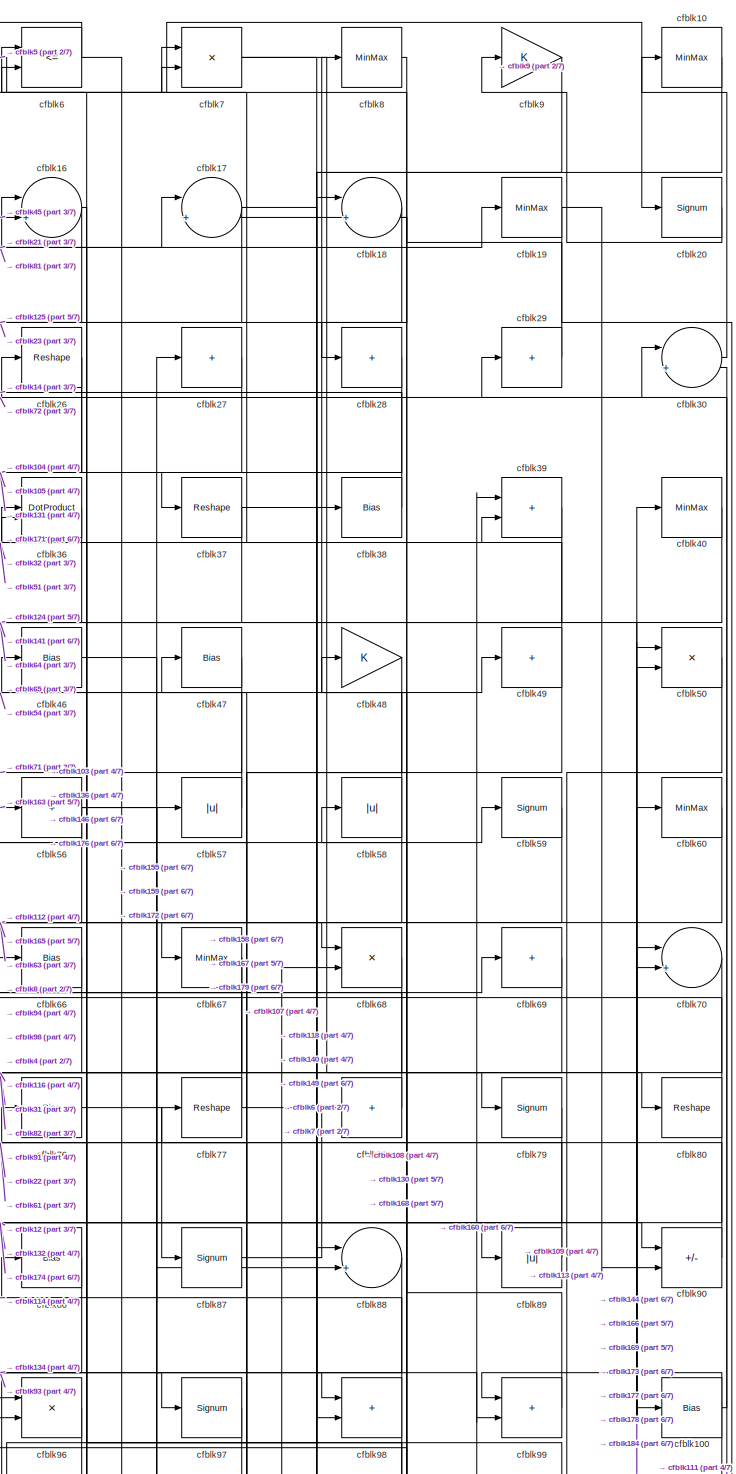
[diagram: root canvas - part 1/7, top right region]
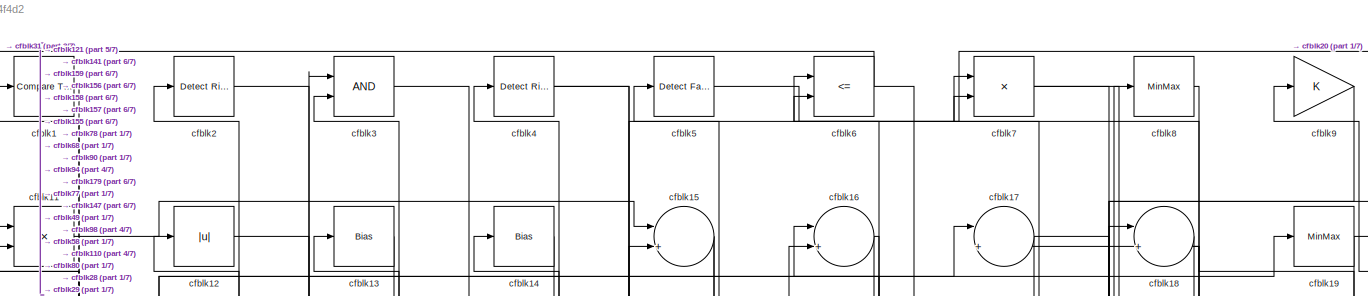
[diagram: root canvas - part 2/7, full width, top band]
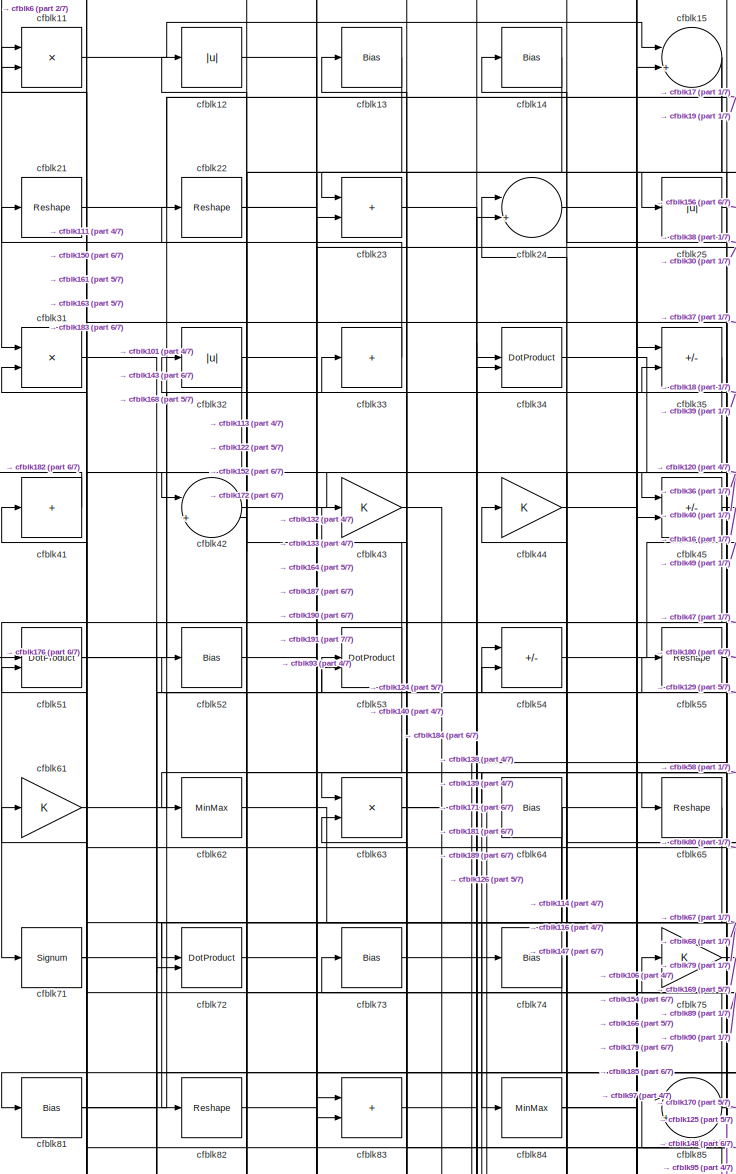
[diagram: root canvas - part 3/7, top left region]
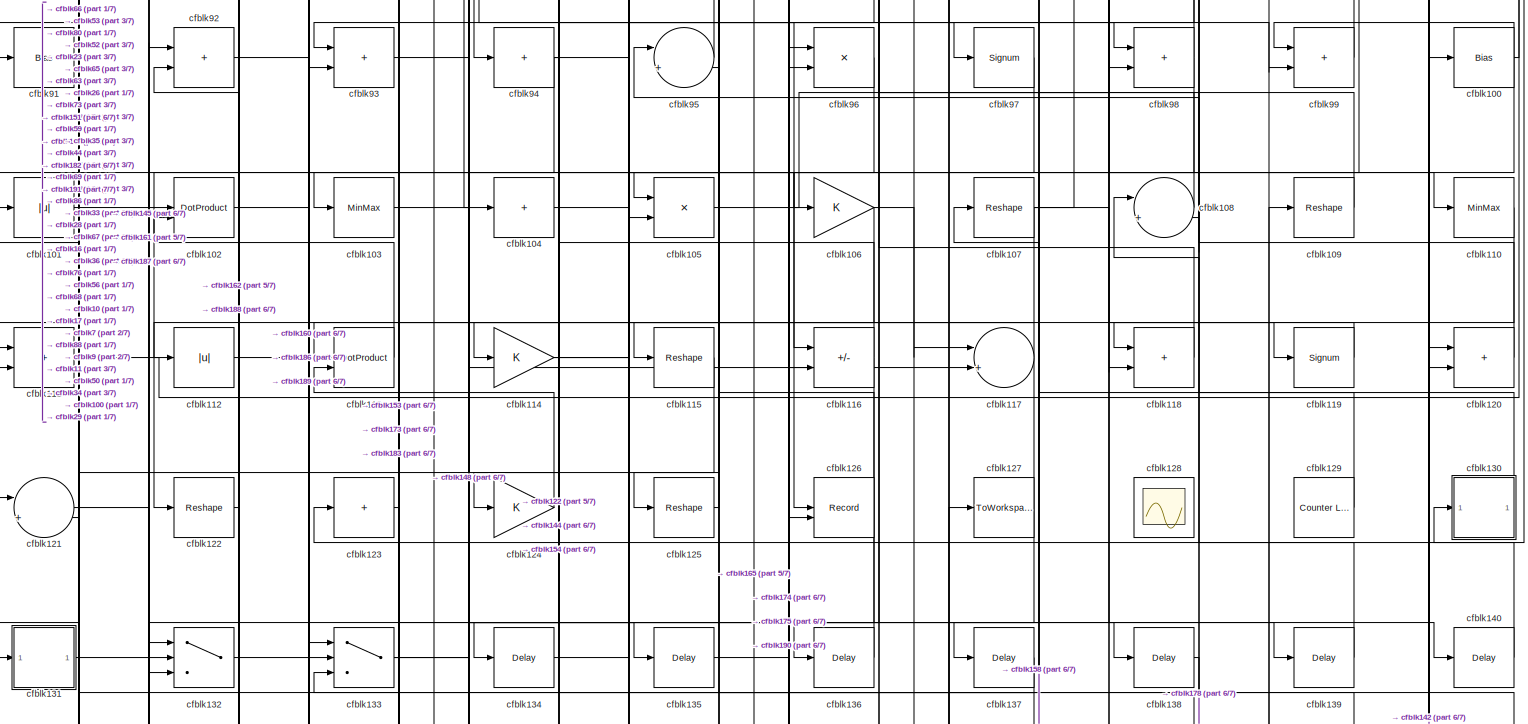
[diagram: root canvas - part 4/7, full width, middle band]
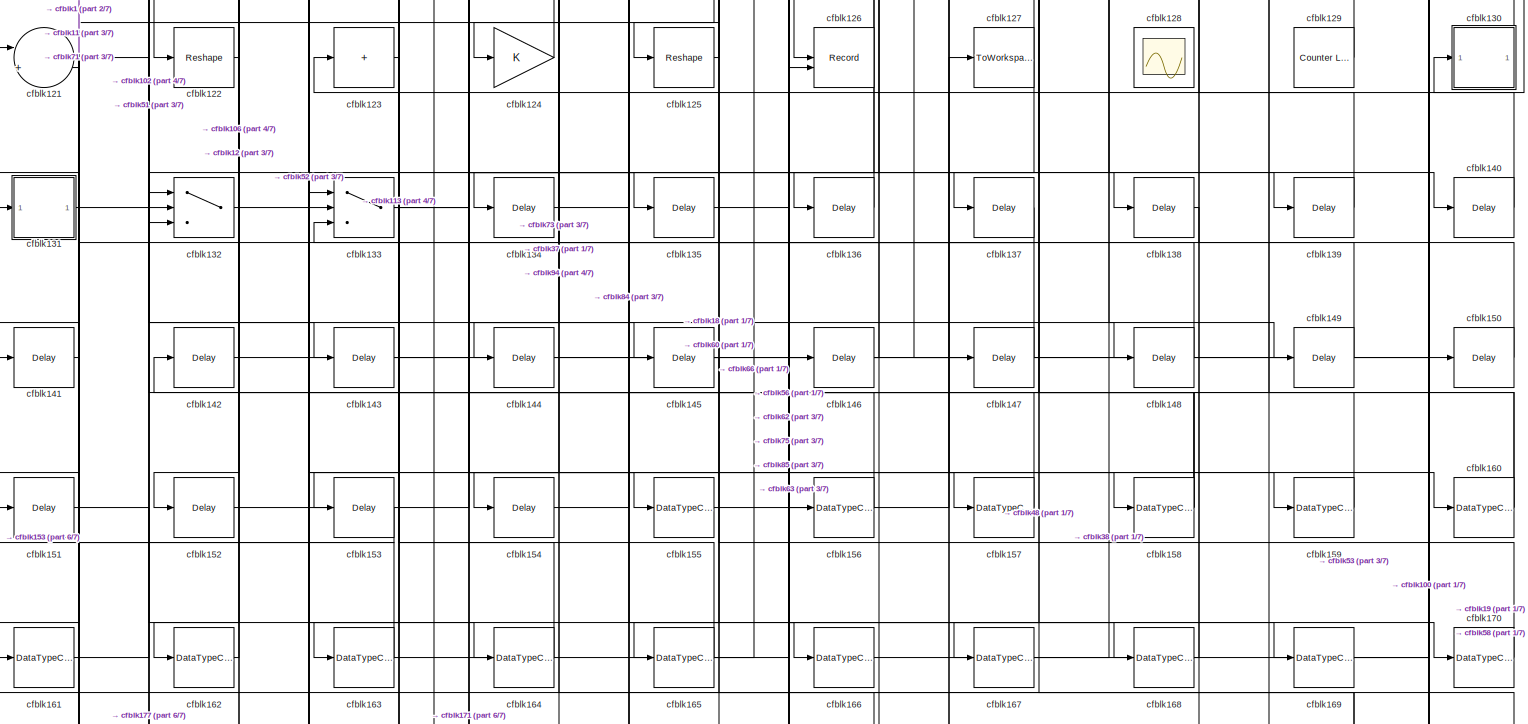
[diagram: root canvas - part 5/7, full width, bottom band]
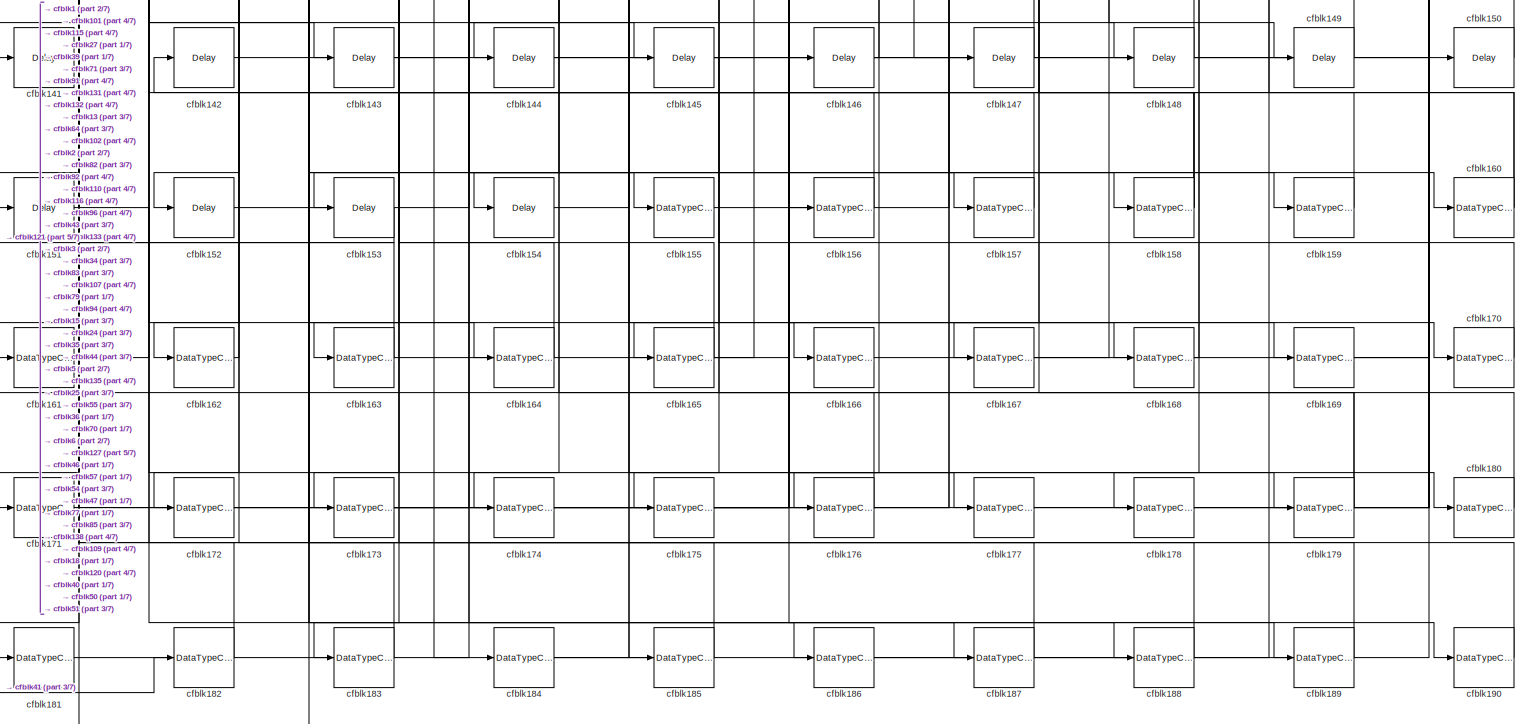
[diagram: root canvas - part 6/7, full width, bottom band]
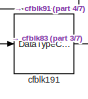
[diagram: root canvas - part 7/7, bottom left region]
MODEL slx_a007d774f4d2
KIND model
CONFIG AbsTol = auto
CONFIG EnableMultiTasking = off
CONFIG FixedStep = auto
CONFIG MaxStep = auto
CONFIG MinStep = auto
CONFIG RelTol = 1e-3
CONFIG SampleTimeConstraint = Unconstrained
CONFIG SolverName = VariableStepAuto
CONFIG StartTime = 0.0
CONFIG StopTime = 10.0
BLOCK [Reference] cfblk1  REF=hdlsllib/Logic and Bit
Operations/Compare
To Constant
  SourceBlock = hdlsllib/Logic and Bit\nOperations/Compare\nTo Constant
  SourceType = Compare To Constant
BLOCK [MinMax] cfblk10
BLOCK [Bias] cfblk100
  Bias = 0.0
  SaturateOnIntegerOverflow = off
BLOCK [Abs] cfblk101
  SaturateOnIntegerOverflow = off
BLOCK [DotProduct] cfblk102
  OutDataTypeStr = Inherit: Inherit via internal rule
BLOCK [MinMax] cfblk103
BLOCK [Sum] cfblk104
  IconShape = rectangular
  Inputs = +
BLOCK [Product] cfblk105
  Inputs = */
  RndMeth = Zero
  SaturateOnIntegerOverflow = on
BLOCK [Gain] cfblk106
BLOCK [Reshape] cfblk107
BLOCK [Sum] cfblk108
  Inputs = |++
BLOCK [Reshape] cfblk109
BLOCK [Product] cfblk11
  Inputs = */
  RndMeth = Zero
  SaturateOnIntegerOverflow = on
BLOCK [MinMax] cfblk110
BLOCK [Sum] cfblk111
  IconShape = rectangular
BLOCK [Abs] cfblk112
  SaturateOnIntegerOverflow = off
BLOCK [DotProduct] cfblk113
  OutDataTypeStr = Inherit: Inherit via internal rule
BLOCK [Gain] cfblk114
BLOCK [Reshape] cfblk115
BLOCK [Sum] cfblk116
  IconShape = rectangular
  Inputs = +-
BLOCK [Sum] cfblk117
  Inputs = |++
BLOCK [Sum] cfblk118
  IconShape = rectangular
BLOCK [Signum] cfblk119
BLOCK [Abs] cfblk12
  SaturateOnIntegerOverflow = off
BLOCK [Sum] cfblk120
  IconShape = rectangular
BLOCK [Sum] cfblk121
  Inputs = |++
BLOCK [Reshape] cfblk122
BLOCK [Sum] cfblk123
  IconShape = rectangular
  Inputs = +
BLOCK [Gain] cfblk124
BLOCK [Reshape] cfblk125
BLOCK [Record] cfblk126
  CompatibilityTag = XY
  FileSettingsInternal = {"entries":[{"content":{"excelSettings":{"content":{},"type":"Streamout.ExcelSettings"}},"type":"Streamout.FileSettingStorage","uuid":""}],"packageUris":["http:\/\/schema.mathworks.com\/mf0\/streamout_blocks\/R2020a"],"version":"1.0"}
  Layout = [1 1]
  SignalsInternal = {"entries":[{"content":{"signals":[{"content":{"blockPath":[],"dimensions":[1],"domain":"","lineColor":"#a2142f","plots":[1],"port":1,"signalID":3981,"signalName":"XY Graph:1"},"type":"RecordBlkView.Signal","uuid":""},{"content":{"blockPath":[],"dimensions":[1],"domain":"","lineColor":"#139fff","plots":[1],"port":2,"signalID":3984,"signalName":"XY Graph:2"},"type":"RecordBlkView.Signal","uuid":""}...<+146ch>
  VisualizationBindings = {"xyplotplugin":{"info":[{"series":[{"bindingParametersList":[{"parameter":"X-Axis","signalID":3981,"signalName":"XY Graph:1"},{"parameter":"Y-Axis","signalID":3984,"signalName":"XY Graph:2"}],"seriesID":50670}],"subplotID":1}]}}
  st = -1
BLOCK [ToWorkspace] cfblk127
  MaxDataPoints = inf
  SampleTime = -1
  SaveFormat = Timeseries
  VariableName = simout
BLOCK [Scope] cfblk128
  Floating = on
  NumInputPorts = 1
  ScopeSpecificationString = Simulink.scopes.TimeScopeBlockCfg('CurrentConfiguration', extmgr.ConfigurationSet(extmgr.Configuration('Core','General UI',true,'FigureColor',[0.156862745098039 0.156862745098039 0.156862745098039]),extmgr.Configuration('Core','Source UI',true),extmgr.Configuration('Sources','WiredSimulink',true,'DataLoggingVariableName','ScopeData1','DataLoggingSaveFormat','StructureWithTime','DataLoggingLimitDat...<+2713ch>
BLOCK [Reference] cfblk129  REF=hdlsllib/Sources/Counter
Limited
  SourceBlock = hdlsllib/Sources/Counter\nLimited
  SourceType = Counter Limited
BLOCK [Bias] cfblk13
  Bias = 0.0
  SaturateOnIntegerOverflow = off
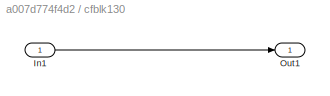
BLOCK [SubSystem] cfblk130
  LibrarySourceBlock = hdlsllib/Ports &\nSubsystems/Subsystem
BLOCK [Inport] cfblk130/In1
BLOCK [Outport] cfblk130/Out1
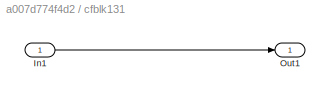
BLOCK [SubSystem] cfblk131
  LibrarySourceBlock = hdlsllib/Ports &\nSubsystems/Subsystem
BLOCK [Inport] cfblk131/In1
BLOCK [Outport] cfblk131/Out1
BLOCK [Switch] cfblk132
  InputSameDT = off
  SaturateOnIntegerOverflow = off
BLOCK [Switch] cfblk133
  InputSameDT = off
  SaturateOnIntegerOverflow = off
BLOCK [Delay] cfblk134
  InputPortMap = u0
  SampleTime = 1
BLOCK [Delay] cfblk135
  InputPortMap = u0
  SampleTime = 1
BLOCK [Delay] cfblk136
  InputPortMap = u0
  SampleTime = 1
BLOCK [Delay] cfblk137
  InputPortMap = u0
  SampleTime = 1
BLOCK [Delay] cfblk138
  InputPortMap = u0
  SampleTime = 1
BLOCK [Delay] cfblk139
  InputPortMap = u0
  SampleTime = 1
BLOCK [Bias] cfblk14
  Bias = 0.0
  SaturateOnIntegerOverflow = off
BLOCK [Delay] cfblk140
  InputPortMap = u0
  SampleTime = 1
BLOCK [Delay] cfblk141
  InputPortMap = u0
  SampleTime = 1
BLOCK [Delay] cfblk142
  InputPortMap = u0
  SampleTime = 1
BLOCK [Delay] cfblk143
  InputPortMap = u0
  SampleTime = 1
BLOCK [Delay] cfblk144
  InputPortMap = u0
  SampleTime = 1
BLOCK [Delay] cfblk145
  InputPortMap = u0
  SampleTime = 1
BLOCK [Delay] cfblk146
  InputPortMap = u0
  SampleTime = 1
BLOCK [Delay] cfblk147
  InputPortMap = u0
  SampleTime = 1
BLOCK [Delay] cfblk148
  InputPortMap = u0
  SampleTime = 1
BLOCK [Delay] cfblk149
  InputPortMap = u0
  SampleTime = 1
BLOCK [Sum] cfblk15
  Inputs = |++
BLOCK [Delay] cfblk150
  InputPortMap = u0
  SampleTime = 1
BLOCK [Delay] cfblk151
  InputPortMap = u0
  SampleTime = 1
BLOCK [Delay] cfblk152
  InputPortMap = u0
  SampleTime = 1
BLOCK [Delay] cfblk153
  InputPortMap = u0
  SampleTime = 1
BLOCK [Delay] cfblk154
  InputPortMap = u0
  SampleTime = 1
BLOCK [DataTypeConversion] cfblk155
  OutDataTypeStr = uint8
  RndMeth = Floor
  SaturateOnIntegerOverflow = off
BLOCK [DataTypeConversion] cfblk156
  OutDataTypeStr = uint8
  RndMeth = Floor
  SaturateOnIntegerOverflow = off
BLOCK [DataTypeConversion] cfblk157
  OutDataTypeStr = uint8
  RndMeth = Floor
  SaturateOnIntegerOverflow = off
BLOCK [DataTypeConversion] cfblk158
  RndMeth = Floor
  SaturateOnIntegerOverflow = off
BLOCK [DataTypeConversion] cfblk159
  OutDataTypeStr = uint8
  RndMeth = Floor
  SaturateOnIntegerOverflow = off
BLOCK [Sum] cfblk16
  Inputs = |++
BLOCK [DataTypeConversion] cfblk160
  RndMeth = Floor
  SaturateOnIntegerOverflow = off
BLOCK [DataTypeConversion] cfblk161
  OutDataTypeStr = uint8
  RndMeth = Floor
  SaturateOnIntegerOverflow = off
BLOCK [DataTypeConversion] cfblk162
  OutDataTypeStr = uint8
  RndMeth = Floor
  SaturateOnIntegerOverflow = off
BLOCK [DataTypeConversion] cfblk163
  RndMeth = Floor
  SaturateOnIntegerOverflow = off
BLOCK [DataTypeConversion] cfblk164
  OutDataTypeStr = uint8
  RndMeth = Floor
  SaturateOnIntegerOverflow = off
BLOCK [DataTypeConversion] cfblk165
  RndMeth = Floor
  SaturateOnIntegerOverflow = off
BLOCK [DataTypeConversion] cfblk166
  OutDataTypeStr = uint8
  RndMeth = Floor
  SaturateOnIntegerOverflow = off
BLOCK [DataTypeConversion] cfblk167
  OutDataTypeStr = uint8
  RndMeth = Floor
  SaturateOnIntegerOverflow = off
BLOCK [DataTypeConversion] cfblk168
  OutDataTypeStr = uint8
  RndMeth = Floor
  SaturateOnIntegerOverflow = off
BLOCK [DataTypeConversion] cfblk169
  OutDataTypeStr = uint8
  RndMeth = Floor
  SaturateOnIntegerOverflow = off
BLOCK [Sum] cfblk17
  Inputs = |++
BLOCK [DataTypeConversion] cfblk170
  OutDataTypeStr = uint8
  RndMeth = Floor
  SaturateOnIntegerOverflow = off
BLOCK [DataTypeConversion] cfblk171
  RndMeth = Floor
  SaturateOnIntegerOverflow = off
BLOCK [DataTypeConversion] cfblk172
  OutDataTypeStr = uint8
  RndMeth = Floor
  SaturateOnIntegerOverflow = off
BLOCK [DataTypeConversion] cfblk173
  RndMeth = Floor
  SaturateOnIntegerOverflow = off
BLOCK [DataTypeConversion] cfblk174
  OutDataTypeStr = uint8
  RndMeth = Floor
  SaturateOnIntegerOverflow = off
BLOCK [DataTypeConversion] cfblk175
  OutDataTypeStr = uint8
  RndMeth = Floor
  SaturateOnIntegerOverflow = off
BLOCK [DataTypeConversion] cfblk176
  OutDataTypeStr = uint8
  RndMeth = Floor
  SaturateOnIntegerOverflow = off
BLOCK [DataTypeConversion] cfblk177
  OutDataTypeStr = uint8
  RndMeth = Floor
  SaturateOnIntegerOverflow = off
BLOCK [DataTypeConversion] cfblk178
  OutDataTypeStr = uint8
  RndMeth = Floor
  SaturateOnIntegerOverflow = off
BLOCK [DataTypeConversion] cfblk179
  RndMeth = Floor
  SaturateOnIntegerOverflow = off
BLOCK [Sum] cfblk18
  Inputs = |++
BLOCK [DataTypeConversion] cfblk180
  OutDataTypeStr = uint8
  RndMeth = Floor
  SaturateOnIntegerOverflow = off
BLOCK [DataTypeConversion] cfblk181
  OutDataTypeStr = uint8
  RndMeth = Floor
  SaturateOnIntegerOverflow = off
BLOCK [DataTypeConversion] cfblk182
  OutDataTypeStr = uint8
  RndMeth = Floor
  SaturateOnIntegerOverflow = off
BLOCK [DataTypeConversion] cfblk183
  OutDataTypeStr = uint8
  RndMeth = Floor
  SaturateOnIntegerOverflow = off
BLOCK [DataTypeConversion] cfblk184
  RndMeth = Floor
  SaturateOnIntegerOverflow = off
BLOCK [DataTypeConversion] cfblk185
  OutDataTypeStr = uint8
  RndMeth = Floor
  SaturateOnIntegerOverflow = off
BLOCK [DataTypeConversion] cfblk186
  OutDataTypeStr = uint8
  RndMeth = Floor
  SaturateOnIntegerOverflow = off
BLOCK [DataTypeConversion] cfblk187
  OutDataTypeStr = uint8
  RndMeth = Floor
  SaturateOnIntegerOverflow = off
BLOCK [DataTypeConversion] cfblk188
  OutDataTypeStr = uint8
  RndMeth = Floor
  SaturateOnIntegerOverflow = off
BLOCK [DataTypeConversion] cfblk189
  OutDataTypeStr = uint8
  RndMeth = Floor
  SaturateOnIntegerOverflow = off
BLOCK [MinMax] cfblk19
BLOCK [DataTypeConversion] cfblk190
  OutDataTypeStr = uint8
  RndMeth = Floor
  SaturateOnIntegerOverflow = off
BLOCK [DataTypeConversion] cfblk191
  OutDataTypeStr = uint8
  RndMeth = Floor
  SaturateOnIntegerOverflow = off
BLOCK [Reference] cfblk2  REF=hdlsllib/Logic and Bit
Operations/Detect Rise
Positive
  SourceBlock = hdlsllib/Logic and Bit\nOperations/Detect Rise\nPositive
  SourceType = Detect Rise Positive
BLOCK [Signum] cfblk20
BLOCK [Reshape] cfblk21
BLOCK [Reshape] cfblk22
BLOCK [Sum] cfblk23
  IconShape = rectangular
BLOCK [Sum] cfblk24
  Inputs = |++
BLOCK [Abs] cfblk25
  SaturateOnIntegerOverflow = off
BLOCK [Reshape] cfblk26
BLOCK [Sum] cfblk27
  IconShape = rectangular
  Inputs = +
BLOCK [Sum] cfblk28
  IconShape = rectangular
  Inputs = +
BLOCK [Sum] cfblk29
  IconShape = rectangular
  Inputs = +
BLOCK [Logic] cfblk3
  AllPortsSameDT = off
  OutDataTypeStr = boolean
BLOCK [Sum] cfblk30
  Inputs = |++
BLOCK [Product] cfblk31
  Inputs = */
  RndMeth = Zero
  SaturateOnIntegerOverflow = on
BLOCK [Abs] cfblk32
  SaturateOnIntegerOverflow = off
BLOCK [Sum] cfblk33
  IconShape = rectangular
  Inputs = +
BLOCK [DotProduct] cfblk34
  OutDataTypeStr = Inherit: Inherit via internal rule
BLOCK [Sum] cfblk35
  IconShape = rectangular
  Inputs = +-
BLOCK [DotProduct] cfblk36
  OutDataTypeStr = Inherit: Inherit via internal rule
BLOCK [Reshape] cfblk37
BLOCK [Bias] cfblk38
  Bias = 0.0
  SaturateOnIntegerOverflow = off
BLOCK [Sum] cfblk39
  IconShape = rectangular
BLOCK [Reference] cfblk4  REF=hdlsllib/Logic and Bit
Operations/Detect Rise
Positive
  SourceBlock = hdlsllib/Logic and Bit\nOperations/Detect Rise\nPositive
  SourceType = Detect Rise Positive
BLOCK [MinMax] cfblk40
BLOCK [Sum] cfblk41
  IconShape = rectangular
  Inputs = +
BLOCK [Sum] cfblk42
  Inputs = |++
BLOCK [Gain] cfblk43
BLOCK [Gain] cfblk44
BLOCK [Sum] cfblk45
  IconShape = rectangular
  Inputs = +-
BLOCK [Bias] cfblk46
  Bias = 0.0
  SaturateOnIntegerOverflow = off
BLOCK [Bias] cfblk47
  Bias = 0.0
  SaturateOnIntegerOverflow = off
BLOCK [Gain] cfblk48
BLOCK [Sum] cfblk49
  IconShape = rectangular
  Inputs = +
BLOCK [Reference] cfblk5  REF=hdlsllib/Logic and Bit
Operations/Detect Fall
Nonpositive
  SourceBlock = hdlsllib/Logic and Bit\nOperations/Detect Fall\nNonpositive
  SourceType = Detect Fall Nonpositive
BLOCK [Product] cfblk50
  Inputs = */
  RndMeth = Zero
  SaturateOnIntegerOverflow = on
BLOCK [DotProduct] cfblk51
  OutDataTypeStr = Inherit: Inherit via internal rule
BLOCK [Bias] cfblk52
  Bias = 0.0
  SaturateOnIntegerOverflow = off
BLOCK [DotProduct] cfblk53
  OutDataTypeStr = Inherit: Inherit via internal rule
BLOCK [Sum] cfblk54
  IconShape = rectangular
  Inputs = +-
BLOCK [Reshape] cfblk55
BLOCK [Sum] cfblk56
  IconShape = rectangular
  Inputs = +
BLOCK [Abs] cfblk57
  SaturateOnIntegerOverflow = off
BLOCK [Abs] cfblk58
  SaturateOnIntegerOverflow = off
BLOCK [Signum] cfblk59
BLOCK [RelationalOperator] cfblk6
  InputSameDT = off
  Operator = <=
  OutDataTypeStr = boolean
BLOCK [MinMax] cfblk60
BLOCK [Gain] cfblk61
BLOCK [MinMax] cfblk62
BLOCK [Product] cfblk63
  Inputs = */
  RndMeth = Zero
  SaturateOnIntegerOverflow = on
BLOCK [Bias] cfblk64
  Bias = 0.0
  SaturateOnIntegerOverflow = off
BLOCK [Reshape] cfblk65
BLOCK [Bias] cfblk66
  Bias = 0.0
  SaturateOnIntegerOverflow = off
BLOCK [MinMax] cfblk67
BLOCK [Product] cfblk68
  Inputs = */
  RndMeth = Zero
  SaturateOnIntegerOverflow = on
BLOCK [Sum] cfblk69
  IconShape = rectangular
  Inputs = +
BLOCK [Product] cfblk7
  Inputs = */
  RndMeth = Zero
  SaturateOnIntegerOverflow = on
BLOCK [Sum] cfblk70
  Inputs = |++
BLOCK [Signum] cfblk71
BLOCK [DotProduct] cfblk72
  OutDataTypeStr = Inherit: Inherit via internal rule
BLOCK [Bias] cfblk73
  Bias = 0.0
  SaturateOnIntegerOverflow = off
BLOCK [Bias] cfblk74
  Bias = 0.0
  SaturateOnIntegerOverflow = off
BLOCK [Gain] cfblk75
BLOCK [Bias] cfblk76
  Bias = 0.0
  SaturateOnIntegerOverflow = off
BLOCK [Reshape] cfblk77
BLOCK [Sum] cfblk78
  IconShape = rectangular
  Inputs = +
BLOCK [Signum] cfblk79
BLOCK [MinMax] cfblk8
BLOCK [Reshape] cfblk80
BLOCK [Bias] cfblk81
  Bias = 0.0
  SaturateOnIntegerOverflow = off
BLOCK [Reshape] cfblk82
BLOCK [Sum] cfblk83
  IconShape = rectangular
BLOCK [MinMax] cfblk84
BLOCK [Sum] cfblk85
  Inputs = |++
BLOCK [Bias] cfblk86
  Bias = 0.0
  SaturateOnIntegerOverflow = off
BLOCK [Signum] cfblk87
BLOCK [Sum] cfblk88
  Inputs = |++
BLOCK [Abs] cfblk89
  SaturateOnIntegerOverflow = off
BLOCK [Gain] cfblk9
BLOCK [Sum] cfblk90
  IconShape = rectangular
  Inputs = +-
BLOCK [Bias] cfblk91
  Bias = 0.0
  SaturateOnIntegerOverflow = off
BLOCK [Sum] cfblk92
  IconShape = rectangular
BLOCK [Sum] cfblk93
  IconShape = rectangular
BLOCK [Sum] cfblk94
  IconShape = rectangular
  Inputs = +
BLOCK [Sum] cfblk95
  Inputs = |++
BLOCK [Product] cfblk96
  Inputs = */
  RndMeth = Zero
  SaturateOnIntegerOverflow = on
BLOCK [Signum] cfblk97
BLOCK [Sum] cfblk98
  IconShape = rectangular
BLOCK [Sum] cfblk99
  IconShape = rectangular
NET cfblk100:1 -> cfblk111:2, cfblk30:2, cfblk99:1
LINE cfblk101:1 -> cfblk53:2
LINE cfblk102:1 -> cfblk160:1
LINE cfblk103:1 -> cfblk135:1
LINE cfblk104:1 -> cfblk69:1
LINE cfblk105:1 -> cfblk88:1
NET cfblk106:1 -> cfblk117:1, cfblk162:1
NET cfblk107:1 -> cfblk119:1, cfblk144:1, cfblk68:2
LINE cfblk108:1 -> cfblk76:1
LINE cfblk109:1 -> cfblk36:1
LINE cfblk10:1 -> cfblk118:2
LINE cfblk110:1 -> cfblk153:1
LINE cfblk111:1 -> cfblk29:1
LINE cfblk112:1 -> cfblk26:1
LINE cfblk113:1 -> cfblk52:1
NET cfblk114:1 -> cfblk59:1, cfblk86:1
LINE cfblk115:1 -> cfblk151:1
NET cfblk116:1 -> cfblk183:1, cfblk44:1
NET cfblk117:1 -> cfblk115:1, cfblk132:3
LINE cfblk118:1 -> cfblk16:1
LINE cfblk119:1 -> cfblk118:1
LINE cfblk11:1 -> cfblk15:1
LINE cfblk120:1 -> cfblk95:1
LINE cfblk121:1 -> cfblk177:1
LINE cfblk122:1 -> cfblk12:1
LINE cfblk123:1 -> cfblk163:1
LINE cfblk124:1 -> cfblk73:1
LINE cfblk125:1 -> cfblk85:1
LINE cfblk129:1 -> cfblk53:1
LINE cfblk12:1 -> cfblk89:1
LINE cfblk130/In1:1 -> cfblk130/Out1:1
LINE cfblk130:1 -> cfblk58:1
LINE cfblk131/In1:1 -> cfblk131/Out1:1
LINE cfblk131:1 -> cfblk145:1
LINE cfblk132:1 -> cfblk23:2
NET cfblk133:1 -> cfblk148:1, cfblk74:1
LINE cfblk134:1 -> cfblk105:2
LINE cfblk135:1 -> cfblk190:1
LINE cfblk136:1 -> cfblk95:2
LINE cfblk137:1 -> cfblk133:3
LINE cfblk138:1 -> cfblk178:1
LINE cfblk139:1 -> cfblk108:1
LINE cfblk13:1 -> cfblk172:1
LINE cfblk140:1 -> cfblk63:2
LINE cfblk141:1 -> cfblk1:1
LINE cfblk142:1 -> cfblk120:2
LINE cfblk143:1 -> cfblk157:1
LINE cfblk144:1 -> cfblk50:1
LINE cfblk145:1 -> cfblk175:1
LINE cfblk146:1 -> cfblk36:2
LINE cfblk147:1 -> cfblk54:2
LINE cfblk148:1 -> cfblk85:2
LINE cfblk149:1 -> cfblk18:2
LINE cfblk14:1 -> cfblk42:1
LINE cfblk150:1 -> cfblk51:2
LINE cfblk151:1 -> cfblk188:1
LINE cfblk152:1 -> cfblk34:2
LINE cfblk153:1 -> cfblk121:1
LINE cfblk154:1 -> cfblk35:1
LINE cfblk155:1 -> cfblk57:1
LINE cfblk156:1 -> cfblk3:1
LINE cfblk157:1 -> cfblk3:2
NET cfblk158:1 -> cfblk107:1, cfblk132:1, cfblk47:1
LINE cfblk159:1 -> cfblk2:1
NET cfblk15:1 -> cfblk42:2, cfblk45:2
NET cfblk160:1 -> cfblk142:1, cfblk39:1
LINE cfblk161:1 -> cfblk102:1
LINE cfblk162:1 -> cfblk102:2
NET cfblk163:1 -> cfblk11:2, cfblk56:1
LINE cfblk164:1 -> cfblk123:1
NET cfblk165:1 -> cfblk113:2, cfblk66:1
LINE cfblk166:1 -> cfblk60:1
LINE cfblk167:1 -> cfblk38:1
LINE cfblk168:1 -> cfblk48:1
LINE cfblk169:1 -> cfblk100:1
NET cfblk16:1 -> cfblk103:1, cfblk136:1
LINE cfblk170:1 -> cfblk75:1
NET cfblk171:1 -> cfblk127:1, cfblk34:1
LINE cfblk172:1 -> cfblk27:1
NET cfblk173:1 -> cfblk146:1, cfblk50:2
LINE cfblk174:1 -> cfblk96:1
LINE cfblk175:1 -> cfblk96:2
LINE cfblk176:1 -> cfblk51:1
LINE cfblk177:1 -> cfblk70:1
LINE cfblk178:1 -> cfblk70:2
NET cfblk179:1 -> cfblk150:1, cfblk5:1, cfblk77:1
NET cfblk17:1 -> cfblk140:1, cfblk23:1
LINE cfblk180:1 -> cfblk24:1
LINE cfblk181:1 -> cfblk24:2
LINE cfblk182:1 -> cfblk101:1
LINE cfblk183:1 -> cfblk41:1
NET cfblk184:1 -> cfblk15:2, cfblk40:1
LINE cfblk185:1 -> cfblk43:1
LINE cfblk186:1 -> cfblk109:1
LINE cfblk187:1 -> cfblk92:1
LINE cfblk188:1 -> cfblk92:2
LINE cfblk189:1 -> cfblk133:1
LINE cfblk18:1 -> cfblk125:1
LINE cfblk190:1 -> cfblk83:1
LINE cfblk191:1 -> cfblk83:2
NET cfblk19:1 -> cfblk130:1, cfblk90:2
LINE cfblk1:1 -> cfblk121:2
LINE cfblk20:1 -> cfblk9:1
LINE cfblk21:1 -> cfblk19:1
NET cfblk22:1 -> cfblk25:1, cfblk37:1
LINE cfblk23:1 -> cfblk139:1
LINE cfblk24:1 -> cfblk179:1
LINE cfblk25:1 -> cfblk156:1
NET cfblk26:1 -> cfblk104:1, cfblk131:1
LINE cfblk27:1 -> cfblk171:1
LINE cfblk28:1 -> cfblk105:1
LINE cfblk29:1 -> cfblk6:2
LINE cfblk2:1 -> cfblk158:1
LINE cfblk30:1 -> cfblk10:1
LINE cfblk31:1 -> cfblk79:1
NET cfblk32:1 -> cfblk39:2, cfblk81:1
LINE cfblk33:1 -> cfblk21:1
LINE cfblk34:1 -> cfblk120:1
LINE cfblk35:1 -> cfblk114:1
LINE cfblk36:1 -> cfblk64:1
NET cfblk37:1 -> cfblk124:1, cfblk99:2
LINE cfblk38:1 -> cfblk14:1
LINE cfblk39:1 -> cfblk141:1
LINE cfblk3:1 -> cfblk155:1
LINE cfblk40:1 -> cfblk65:1
LINE cfblk41:1 -> cfblk182:1
LINE cfblk42:1 -> cfblk45:1
LINE cfblk43:1 -> cfblk184:1
LINE cfblk44:1 -> cfblk185:1
NET cfblk45:1 -> cfblk16:2, cfblk72:2
LINE cfblk46:1 -> cfblk159:1
LINE cfblk47:1 -> cfblk71:1
LINE cfblk48:1 -> cfblk167:1
NET cfblk49:1 -> cfblk67:1, cfblk7:1
NET cfblk4:1 -> cfblk68:1, cfblk90:1
LINE cfblk50:1 -> cfblk113:1
NET cfblk51:1 -> cfblk168:1, cfblk18:1
LINE cfblk52:1 -> cfblk164:1
NET cfblk53:1 -> cfblk32:1, cfblk62:1
LINE cfblk54:1 -> cfblk49:1
LINE cfblk55:1 -> cfblk180:1
NET cfblk56:1 -> cfblk112:1, cfblk88:2, cfblk98:1
LINE cfblk57:1 -> cfblk46:1
NET cfblk58:1 -> cfblk63:1, cfblk8:1
LINE cfblk59:1 -> cfblk94:1
LINE cfblk5:1 -> cfblk20:1
LINE cfblk60:1 -> cfblk165:1
LINE cfblk61:1 -> cfblk54:1
LINE cfblk62:1 -> cfblk126:2
NET cfblk63:1 -> cfblk126:1, cfblk35:2
NET cfblk64:1 -> cfblk133:2, cfblk152:1, cfblk84:1, cfblk97:1
LINE cfblk65:1 -> cfblk93:2
LINE cfblk66:1 -> cfblk91:1
NET cfblk67:1 -> cfblk116:2, cfblk82:1
LINE cfblk68:1 -> cfblk72:1
LINE cfblk69:1 -> cfblk108:2
NET cfblk6:1 -> cfblk147:1, cfblk31:1
LINE cfblk70:1 -> cfblk176:1
NET cfblk71:1 -> cfblk143:1, cfblk161:1
LINE cfblk72:1 -> cfblk30:1
LINE cfblk73:1 -> cfblk138:1
LINE cfblk74:1 -> cfblk111:1
LINE cfblk75:1 -> cfblk169:1
LINE cfblk76:1 -> cfblk87:1
NET cfblk77:1 -> cfblk149:1, cfblk6:1
LINE cfblk78:1 -> cfblk4:1
LINE cfblk79:1 -> cfblk174:1
NET cfblk7:1 -> cfblk110:1, cfblk80:1
NET cfblk80:1 -> cfblk132:2, cfblk31:2
NET cfblk81:1 -> cfblk17:1, cfblk55:1
LINE cfblk82:1 -> cfblk187:1
LINE cfblk83:1 -> cfblk189:1
NET cfblk84:1 -> cfblk106:1, cfblk166:1
NET cfblk85:1 -> cfblk13:1, cfblk170:1
LINE cfblk86:1 -> cfblk93:1
LINE cfblk87:1 -> cfblk78:1
LINE cfblk88:1 -> cfblk134:1
LINE cfblk89:1 -> cfblk61:1
LINE cfblk8:1 -> cfblk28:1
LINE cfblk90:1 -> cfblk22:1
NET cfblk91:1 -> cfblk181:1, cfblk191:1
LINE cfblk92:1 -> cfblk186:1
LINE cfblk93:1 -> cfblk117:2
NET cfblk94:1 -> cfblk122:1, cfblk154:1, cfblk7:2
LINE cfblk95:1 -> cfblk33:1
LINE cfblk96:1 -> cfblk173:1
LINE cfblk97:1 -> cfblk116:1
NET cfblk98:1 -> cfblk11:1, cfblk137:1
LINE cfblk99:1 -> cfblk17:2
LINE cfblk9:1 -> cfblk98:2
note: NET lines group one-source signal fan-out (src -> all destinations, sorted); 1:1 wires keep LINE
